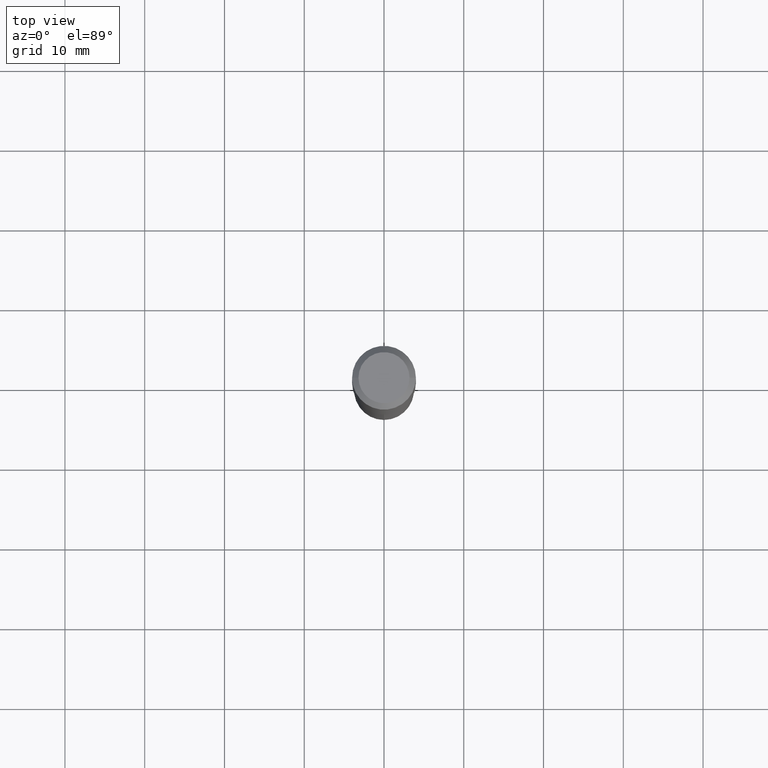
[diagram: clean part render]
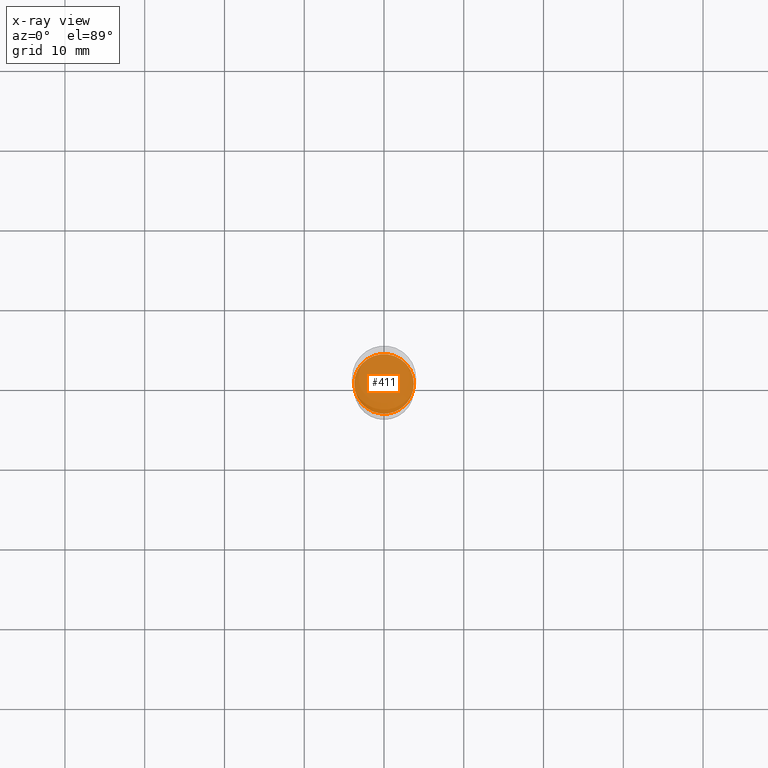
[diagram: x-ray — body ghosted, one internal face saturated and labeled with its STEP entity id]
A machine part, top view, then the same camera in x-ray: the body is ghosted and one INTERNAL B-rep face — a face not visible from any outside direction — is saturated and labeled: STEP entity #411.
In plain terms, the highlighted planar face has unit normal (-0, 0, 1).
Its self-contained STEP definition (entity closure, byte-faithful):
#47 = AXIS2_PLACEMENT_3D ( 'NONE', #172, #175, #215 ) ;
#64 = AXIS2_PLACEMENT_3D ( 'NONE', #155, #313, #201 ) ;
#78 = PLANE ( 'NONE',  #111 ) ;
#93 = VERTEX_POINT ( 'NONE', #428 ) ;
#111 = AXIS2_PLACEMENT_3D ( 'NONE', #340, #485, #452 ) ;
#155 = CARTESIAN_POINT ( 'NONE',  ( 4.380812819400054846E-29, -6.254639670403612266E-15, -1.791400000000000547 ) ) ;
#172 = CARTESIAN_POINT ( 'NONE',  ( 4.380812819400054846E-29, -6.254639670403612266E-15, -1.791400000000000547 ) ) ;
#175 = DIRECTION ( 'NONE',  ( -2.445468806185136597E-29, 3.491481338843145583E-15, 1.000000000000000000 ) ) ;
#201 = DIRECTION ( 'NONE',  ( 1.000000000000000000, -6.982962677686267499E-15, 0.000000000000000000 ) ) ;
#209 = VERTEX_POINT ( 'NONE', #352 ) ;
#215 = DIRECTION ( 'NONE',  ( 1.000000000000000000, -6.982962677686267499E-15, 0.000000000000000000 ) ) ;
#222 = EDGE_CURVE ( 'NONE', #93, #209, #421, .T. ) ;
#270 = EDGE_LOOP ( 'NONE', ( #350, #434 ) ) ;
#296 = EDGE_CURVE ( 'NONE', #209, #93, #333, .T. ) ;
#301 = FACE_OUTER_BOUND ( 'NONE', #270, .T. ) ;
#313 = DIRECTION ( 'NONE',  ( -2.445468806185136597E-29, 3.491481338843145583E-15, 1.000000000000000000 ) ) ;
#333 = CIRCLE ( 'NONE', #47, 0.1471500000000000030 ) ;
#340 = CARTESIAN_POINT ( 'NONE',  ( 4.380812819400054846E-29, -6.254639670403612266E-15, -1.791400000000000547 ) ) ;
#350 = ORIENTED_EDGE ( 'NONE', *, *, #296, .F. ) ;
#352 = CARTESIAN_POINT ( 'NONE',  ( 0.1471500000000000030, -7.282182628425146343E-15, -1.791400000000000547 ) ) ;
#411 = ADVANCED_FACE ( 'NONE', ( #301 ), #78, .F. ) ;
#421 = CIRCLE ( 'NONE', #64, 0.1471500000000000030 ) ;
#428 = CARTESIAN_POINT ( 'NONE',  ( -0.1471500000000000030, -5.206426807558514409E-15, -1.791400000000000547 ) ) ;
#434 = ORIENTED_EDGE ( 'NONE', *, *, #222, .F. ) ;
#452 = DIRECTION ( 'NONE',  ( 1.000000000000000000, -6.982962677686265922E-15, 4.876176775795935793E-29 ) ) ;
#485 = DIRECTION ( 'NONE',  ( -2.438088387897960049E-29, 3.491481338843145188E-15, 1.000000000000000000 ) ) ;